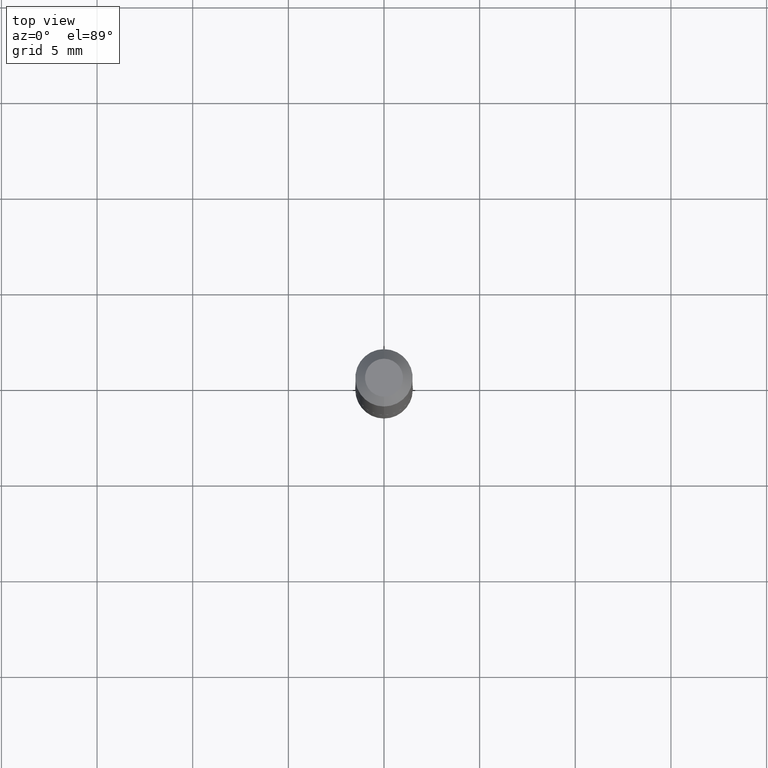
[diagram: clean part render]
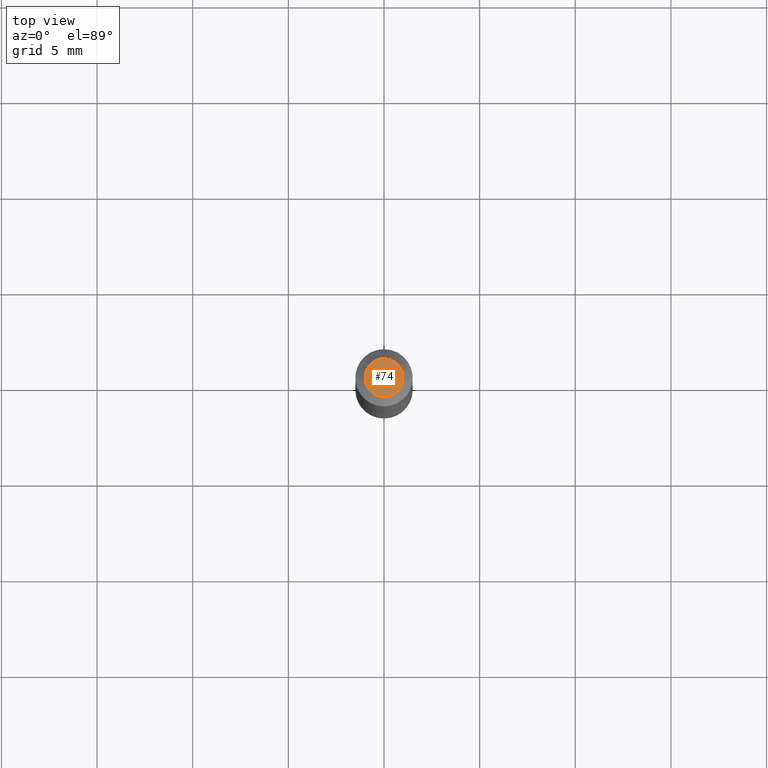
[diagram: same view with one face highlighted and labeled with its STEP entity id]
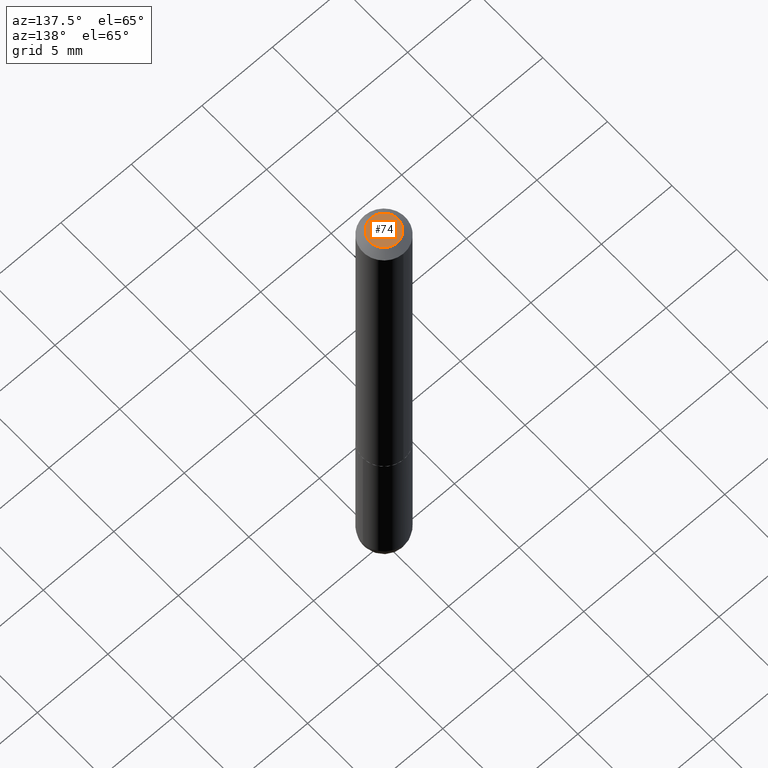
[diagram: same view with one face highlighted and labeled with its STEP entity id]
A machine part, top view. The second image highlights one B-rep face of the part: STEP entity #74.
A second angle (auxiliary view) of the same face is appended — the face is thin or edge-on in the first view.
In plain terms, the highlighted planar face has unit normal (0, -0, -1).
Its self-contained STEP definition (entity closure, byte-faithful):
#16 = AXIS2_PLACEMENT_3D ( 'NONE', #144, #28, #20 ) ;
#17 = VERTEX_POINT ( 'NONE', #336 ) ;
#20 = DIRECTION ( 'NONE',  ( -6.982962677686265922E-15, -1.000000000000000000, 3.463080167607915214E-15 ) ) ;
#28 = DIRECTION ( 'NONE',  ( -2.465301238058955103E-29, 3.463080167607916003E-15, 1.000000000000000000 ) ) ;
#40 = CIRCLE ( 'NONE', #16, 0.03904999999999982097 ) ;
#51 = VERTEX_POINT ( 'NONE', #343 ) ;
#59 = CARTESIAN_POINT ( 'NONE',  ( 2.726846925636474363E-16, 0.03904999999999982097, -3.974628238619710407E-17 ) ) ;
#74 = ADVANCED_FACE ( 'NONE', ( #282 ), #380, .F. ) ;
#92 = DIRECTION ( 'NONE',  ( 6.982962677686265922E-15, 1.000000000000000000, -3.463080167607916397E-15 ) ) ;
#97 = DIRECTION ( 'NONE',  ( 2.465301238058954543E-29, -3.463080167607916397E-15, -1.000000000000000000 ) ) ;
#142 = EDGE_CURVE ( 'NONE', #17, #51, #312, .T. ) ;
#144 = CARTESIAN_POINT ( 'NONE',  ( -4.708084295592962482E-45, 6.613582591769408179E-31, 1.909739963177827947E-16 ) ) ;
#185 = EDGE_LOOP ( 'NONE', ( #393, #371 ) ) ;
#221 = DIRECTION ( 'NONE',  ( -6.982962677686265922E-15, -1.000000000000000000, 3.463080167607915214E-15 ) ) ;
#223 = AXIS2_PLACEMENT_3D ( 'NONE', #59, #97, #92 ) ;
#228 = DIRECTION ( 'NONE',  ( -2.465301238058955103E-29, 3.463080167607916003E-15, 1.000000000000000000 ) ) ;
#282 = FACE_OUTER_BOUND ( 'NONE', #185, .T. ) ;
#312 = CIRCLE ( 'NONE', #395, 0.03904999999999982097 ) ;
#336 = CARTESIAN_POINT ( 'NONE',  ( -3.365074267906927480E-16, -0.03904999999999982097, 3.262072768628712900E-16 ) ) ;
#343 = CARTESIAN_POINT ( 'NONE',  ( 3.425143193405110303E-16, 0.03904999999999982097, 5.574071577269431176E-17 ) ) ;
#371 = ORIENTED_EDGE ( 'NONE', *, *, #142, .T. ) ;
#379 = EDGE_CURVE ( 'NONE', #51, #17, #40, .T. ) ;
#380 = PLANE ( 'NONE',  #223 ) ;
#393 = ORIENTED_EDGE ( 'NONE', *, *, #379, .T. ) ;
#395 = AXIS2_PLACEMENT_3D ( 'NONE', #405, #228, #221 ) ;
#405 = CARTESIAN_POINT ( 'NONE',  ( -4.708084295592962482E-45, 6.613582591769408179E-31, 1.909739963177827947E-16 ) ) ;